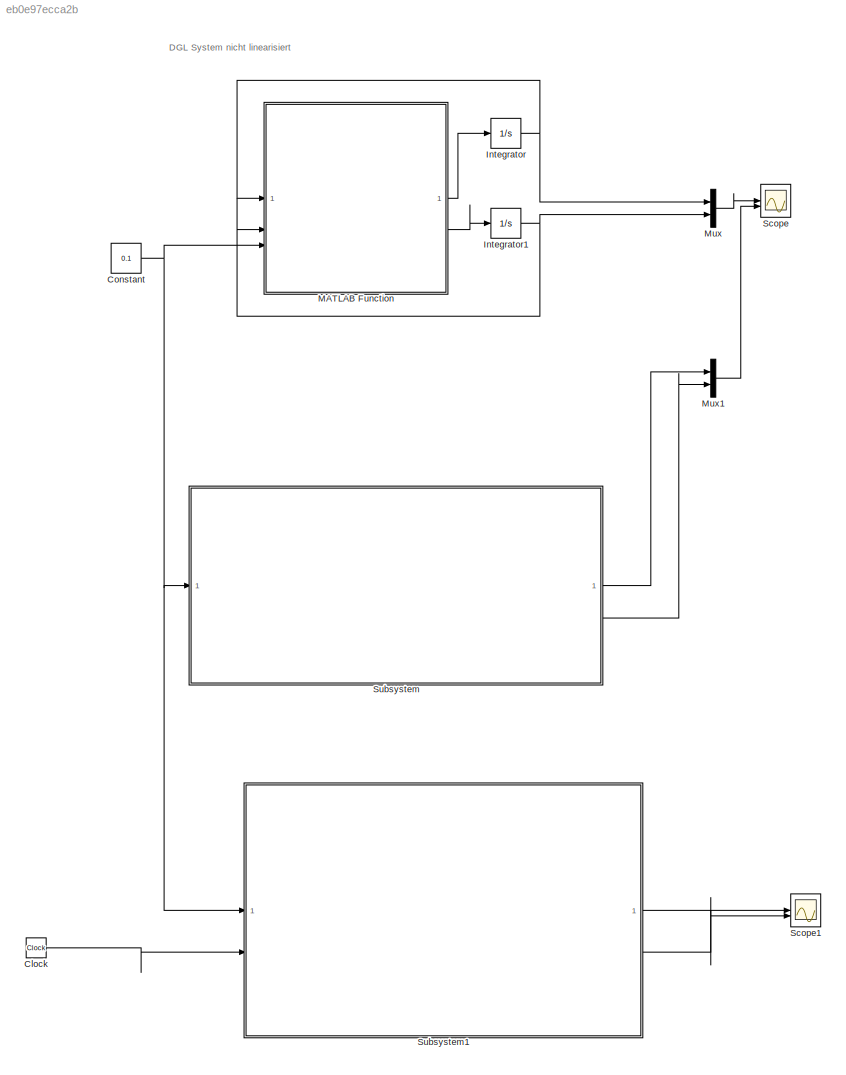
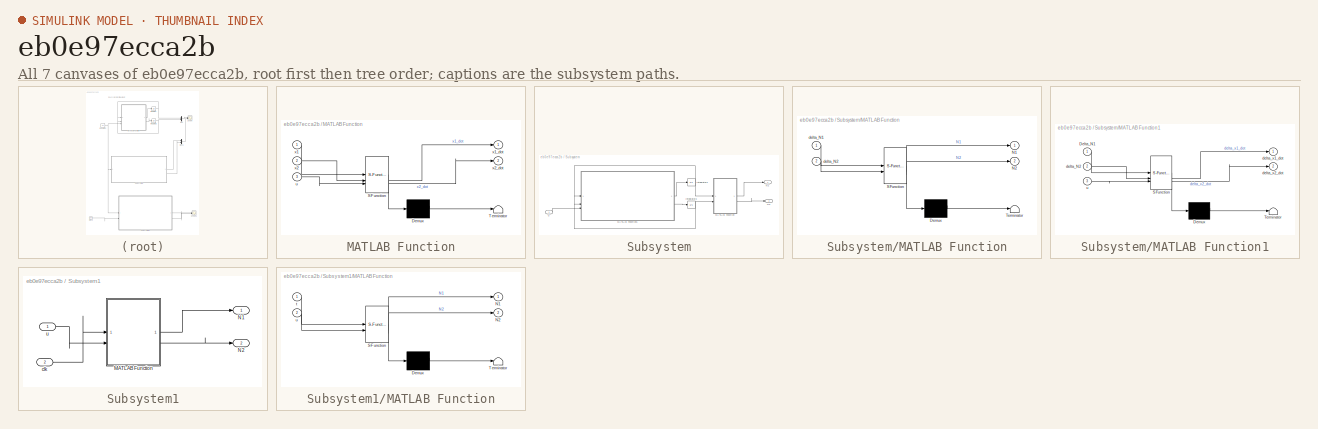
[diagram: thumbnail index - all 7 canvases of the model, root first then tree order]
MODEL slx_eb0e97ecca2b
KIND model
CONFIG AbsTol = auto
CONFIG EnableMultiTasking = off
CONFIG FixedStep = auto
CONFIG MaxStep = auto
CONFIG MinStep = auto
CONFIG RelTol = 1e-3
CONFIG SampleTimeConstraint = Unconstrained
CONFIG SolverName = VariableStepAuto
CONFIG StartTime = 0.0
CONFIG StopTime = 100
BLOCK [Clock] Clock
BLOCK [Constant] Constant
  Value = 0.1
BLOCK [Integrator] Integrator
  InitialCondition = 40
BLOCK [Integrator] Integrator1
  InitialCondition = 9
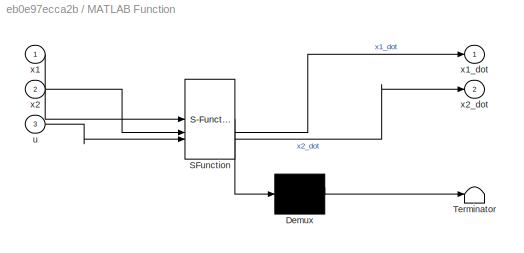
BLOCK [SubSystem] MATLAB Function
  ErrorFcn = Stateflow.Translate.translate
  PermitHierarchicalResolution = ExplicitOnly
  SFBlockType = MATLAB Function
  TreatAsAtomicUnit = on
BLOCK [Demux] MATLAB Function/ Demux 
  Outputs = 1
BLOCK [S-Function] MATLAB Function/ SFunction 
  EnableBusSupport = on
  FunctionName = sf_sfun
  Parameters = e,epsilon1,epsilon2,f,gamm1,gamm2
  PortCounts = [3 3]
  SFcnIsStateOwnerBlock = off
  SFunctionDeploymentMode = off
  Tag = Stateflow S-Function 3
BLOCK [Terminator] MATLAB Function/ Terminator 
BLOCK [Inport] MATLAB Function/u
  Port = 3
BLOCK [Inport] MATLAB Function/x1
BLOCK [Outport] MATLAB Function/x1_dot
BLOCK [Inport] MATLAB Function/x2
  Port = 2
BLOCK [Outport] MATLAB Function/x2_dot
  Port = 2
BLOCK [Mux] Mux
  DisplayOption = bar
  Inputs = 2
BLOCK [Mux] Mux1
  DisplayOption = bar
  Inputs = 2
BLOCK [Scope] Scope
  Floating = off
  NumInputPorts = 2
  ScopeSpecificationString = Simulink.scopes.TimeScopeBlockCfg('CurrentConfiguration', extmgr.ConfigurationSet(extmgr.Configuration('Core','General UI',true),extmgr.Configuration('Core','Source UI',true),extmgr.Configuration('Sources','WiredSimulink',true,'DataLoggingVariableName','ScopeData1'),extmgr.Configuration('Visuals','Time Domain',true,'SerializedDisplays',{struct('MinYLimReal','-8.81983','MaxYLimReal','79.37849','YLa...<+1550ch>
BLOCK [Scope] Scope1
  Floating = off
  NumInputPorts = 2
  ScopeSpecificationString = Simulink.scopes.TimeScopeBlockCfg('CurrentConfiguration', extmgr.ConfigurationSet(extmgr.Configuration('Core','General UI',true),extmgr.Configuration('Core','Source UI',true),extmgr.Configuration('Sources','WiredSimulink',true,'DataLoggingVariableName','ScopeData1'),extmgr.Configuration('Visuals','Time Domain',true,'SerializedDisplays',{struct('MinYLimReal','-8.81983','MaxYLimReal','79.37849','YLa...<+1525ch>
BLOCK [SubSystem] Subsystem
BLOCK [Integrator] Subsystem/Integrator2
  InitialCondition = 40
BLOCK [Integrator] Subsystem/Integrator3
  InitialCondition = 9
BLOCK [SubSystem] Subsystem/MATLAB Function
  ErrorFcn = Stateflow.Translate.translate
  PermitHierarchicalResolution = ExplicitOnly
  SFBlockType = MATLAB Function
  TreatAsAtomicUnit = on
BLOCK [Demux] Subsystem/MATLAB Function/ Demux 
  Outputs = 1
BLOCK [S-Function] Subsystem/MATLAB Function/ SFunction 
  EnableBusSupport = on
  FunctionName = sf_sfun
  Parameters = epsilon1,epsilon2,gamm1,gamm2
  PortCounts = [2 3]
  SFcnIsStateOwnerBlock = off
  SFunctionDeploymentMode = off
  Tag = Stateflow S-Function 2
BLOCK [Terminator] Subsystem/MATLAB Function/ Terminator 
BLOCK [Outport] Subsystem/MATLAB Function/N1
BLOCK [Outport] Subsystem/MATLAB Function/N2
  Port = 2
BLOCK [Inport] Subsystem/MATLAB Function/delta_N1
BLOCK [Inport] Subsystem/MATLAB Function/delta_N2
  Port = 2
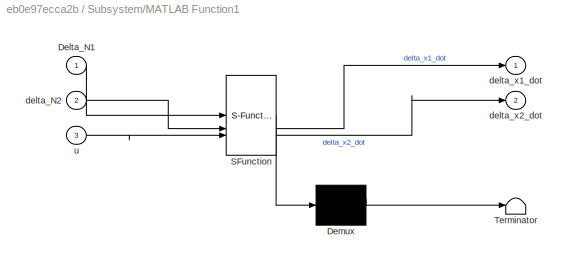
BLOCK [SubSystem] Subsystem/MATLAB Function1
  ErrorFcn = Stateflow.Translate.translate
  PermitHierarchicalResolution = ExplicitOnly
  SFBlockType = MATLAB Function
  TreatAsAtomicUnit = on
BLOCK [Demux] Subsystem/MATLAB Function1/ Demux 
  Outputs = 1
BLOCK [S-Function] Subsystem/MATLAB Function1/ SFunction 
  EnableBusSupport = on
  FunctionName = sf_sfun
  Parameters = e,epsilon1,epsilon2,f,gamm1,gamm2
  PortCounts = [3 3]
  SFcnIsStateOwnerBlock = off
  SFunctionDeploymentMode = off
  Tag = Stateflow S-Function 4
BLOCK [Terminator] Subsystem/MATLAB Function1/ Terminator 
BLOCK [Inport] Subsystem/MATLAB Function1/Delta_N1
BLOCK [Inport] Subsystem/MATLAB Function1/delta_N2
  Port = 2
BLOCK [Outport] Subsystem/MATLAB Function1/delta_x1_dot
BLOCK [Outport] Subsystem/MATLAB Function1/delta_x2_dot
  Port = 2
BLOCK [Inport] Subsystem/MATLAB Function1/u
  Port = 3
BLOCK [Outport] Subsystem/N1
BLOCK [Outport] Subsystem/N2
  Port = 2
BLOCK [Inport] Subsystem/u
BLOCK [SubSystem] Subsystem1
BLOCK [SubSystem] Subsystem1/MATLAB Function
  ErrorFcn = Stateflow.Translate.translate
  PermitHierarchicalResolution = ExplicitOnly
  SFBlockType = MATLAB Function
  TreatAsAtomicUnit = on
BLOCK [Demux] Subsystem1/MATLAB Function/ Demux 
  Outputs = 1
BLOCK [S-Function] Subsystem1/MATLAB Function/ SFunction 
  EnableBusSupport = on
  FunctionName = sf_sfun
  Parameters = e,epsilon1,epsilon2,f,gamm1,gamm2,x10,x20
  PortCounts = [2 3]
  SFcnIsStateOwnerBlock = off
  SFunctionDeploymentMode = off
  Tag = Stateflow S-Function 1
BLOCK [Terminator] Subsystem1/MATLAB Function/ Terminator 
BLOCK [Outport] Subsystem1/MATLAB Function/N1
BLOCK [Outport] Subsystem1/MATLAB Function/N2
  Port = 2
BLOCK [Inport] Subsystem1/MATLAB Function/t
BLOCK [Inport] Subsystem1/MATLAB Function/u
  Port = 2
BLOCK [Outport] Subsystem1/N1
BLOCK [Outport] Subsystem1/N2
  Port = 2
BLOCK [Inport] Subsystem1/clk
  Port = 2
BLOCK [Inport] Subsystem1/u
ANNOTATION (root): DGL System nicht linearisiert
LINE Clock:1 -> Subsystem1:2
NET Constant:1 -> MATLAB Function:3, Subsystem1:1, Subsystem:1
NET Integrator1:1 -> MATLAB Function:2, Mux:2
NET Integrator:1 -> MATLAB Function:1, Mux:1
LINE MATLAB Function:1 -> Integrator:1
LINE MATLAB Function:2 -> Integrator1:1
LINE Mux1:1 -> Scope:2
LINE Mux:1 -> Scope:1
NET Subsystem/Integrator2:1 -> Subsystem/MATLAB Function1:1, Subsystem/MATLAB Function:1
NET Subsystem/Integrator3:1 -> Subsystem/MATLAB Function1:2, Subsystem/MATLAB Function:2
LINE Subsystem/MATLAB Function1:1 -> Subsystem/Integrator2:1
LINE Subsystem/MATLAB Function1:2 -> Subsystem/Integrator3:1
LINE Subsystem/MATLAB Function:1 -> Subsystem/N1:1
LINE Subsystem/MATLAB Function:2 -> Subsystem/N2:1
LINE Subsystem/u:1 -> Subsystem/MATLAB Function1:3
LINE Subsystem1/MATLAB Function:1 -> Subsystem1/N1:1
LINE Subsystem1/MATLAB Function:2 -> Subsystem1/N2:1
LINE Subsystem1/clk:1 -> Subsystem1/MATLAB Function:1
LINE Subsystem1/u:1 -> Subsystem1/MATLAB Function:2
LINE Subsystem1:1 -> Scope1:1
LINE Subsystem1:2 -> Scope1:2
LINE Subsystem:1 -> Mux1:1
LINE Subsystem:2 -> Mux1:2
note: NET lines group one-source signal fan-out (src -> all destinations, sorted); 1:1 wires keep LINE
CHART Subsystem1/MATLAB Function states=1 transitions=1
  STATE_LABEL 'eML_blk_kernel()'
  STATE_LABEL 'SCRIPT:\nfunction [N1,N2] = fcn(t,u,gamm2, gamm1, epsilon1, epsilon2, e, f, x10, x20)\na11 = 0;\na12 = -epsilon2*gamm1/gamm2;\na21 = gamm2*epsilon1/gamm1;\na22 = 0;\n\nb1=-e;\nb2=-f;\n\na = epsilon1 ;\nb = gamm1;\nc = gamm2;\nd = epsilon2;\n\n% x10 = 10;\n% x20 = 20;\n\nw0 = sqrt(a*d);\nC1 = x10 - d/c -((b*f)/(a*c))*u;\nC2 = -w0/a21 *(x20-a/b +((c*e)/(b*d))*u);\n\nN1= C1 * cos(w0*t)+C2* sin(w0*t)+((b*f)/(a*c))*u;\nN2= C...<+70ch>'
CHART Subsystem/MATLAB Function states=1 transitions=1
  STATE_LABEL 'eML_blk_kernel()'
  STATE_LABEL 'SCRIPT:\nfunction [N1,N2] = fcn(delta_N1,delta_N2,epsilon1, epsilon2, gamm1, gamm2)\n    N1=delta_N1+epsilon2/gamm2;\n    N2=delta_N2+epsilon1/gamm1;\nend\n'
CHART MATLAB Function states=1 transitions=1
  STATE_LABEL 'eML_blk_kernel()'
  STATE_LABEL 'SCRIPT:\nfunction [x1_dot,x2_dot] = fcn(x1,x2,u,epsilon1, epsilon2, gamm1, gamm2, e, f)\n\nx1_dot=epsilon1*x1-gamm1*x1*x2-e*u;\nx2_dot=gamm2*x1*x2-epsilon2*x2-f*u;\n\n\nend\n'
CHART Subsystem/MATLAB Function1 states=1 transitions=1
  STATE_LABEL 'eML_blk_kernel()'
  STATE_LABEL 'SCRIPT:\nfunction [delta_x1_dot,delta_x2_dot] = fcn(Delta_N1,delta_N2,u,epsilon1, epsilon2, gamm1, gamm2, e, f)\n\nus = 0;\ndelta_us=u-us;\n\na11 = 0;\na12 = -epsilon2*gamm1/gamm2;\na21 = gamm2*epsilon1/gamm1;\na22 = 0;\n\nb1=-e;\nb2=-f;\n\ndelta_x1_dot=a11*Delta_N1 + a12*delta_N2+delta_us*b1;\ndelta_x2_dot=a21*Delta_N1 + a22*delta_N2+delta_us*b2;\n\n\nend\n'
CHART  states=0 transitions=0
CHART  states=0 transitions=0
CHART  states=0 transitions=0
CHART  states=0 transitions=0
